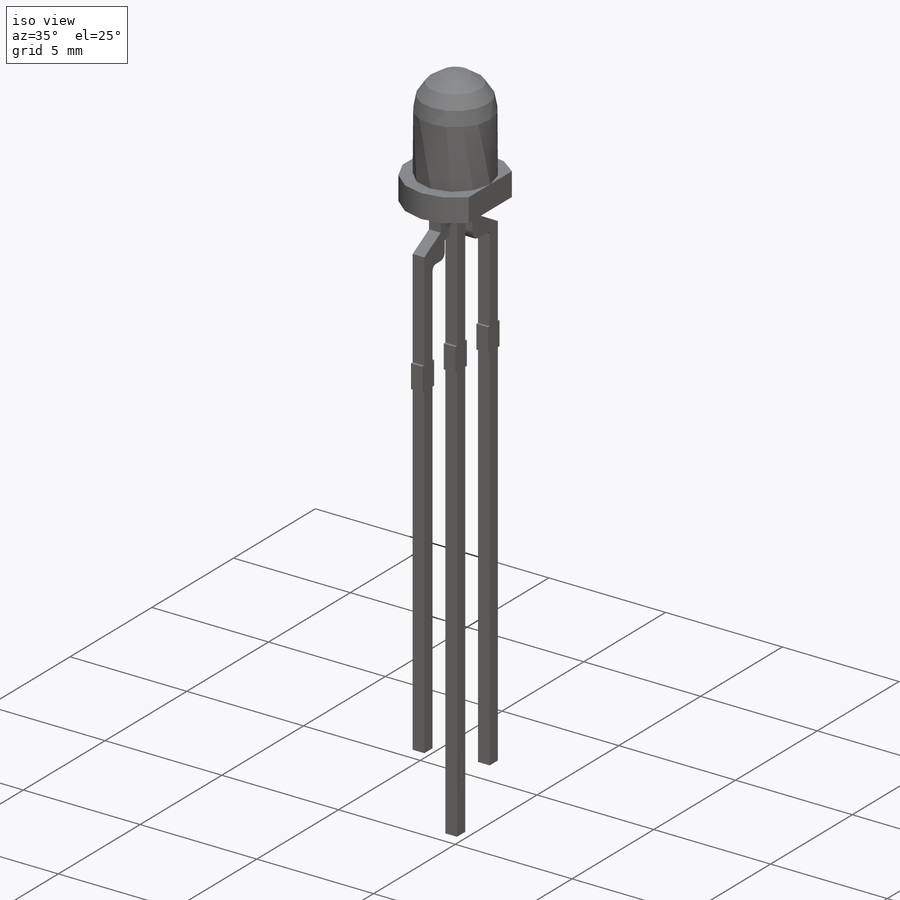
[diagram: iso view]
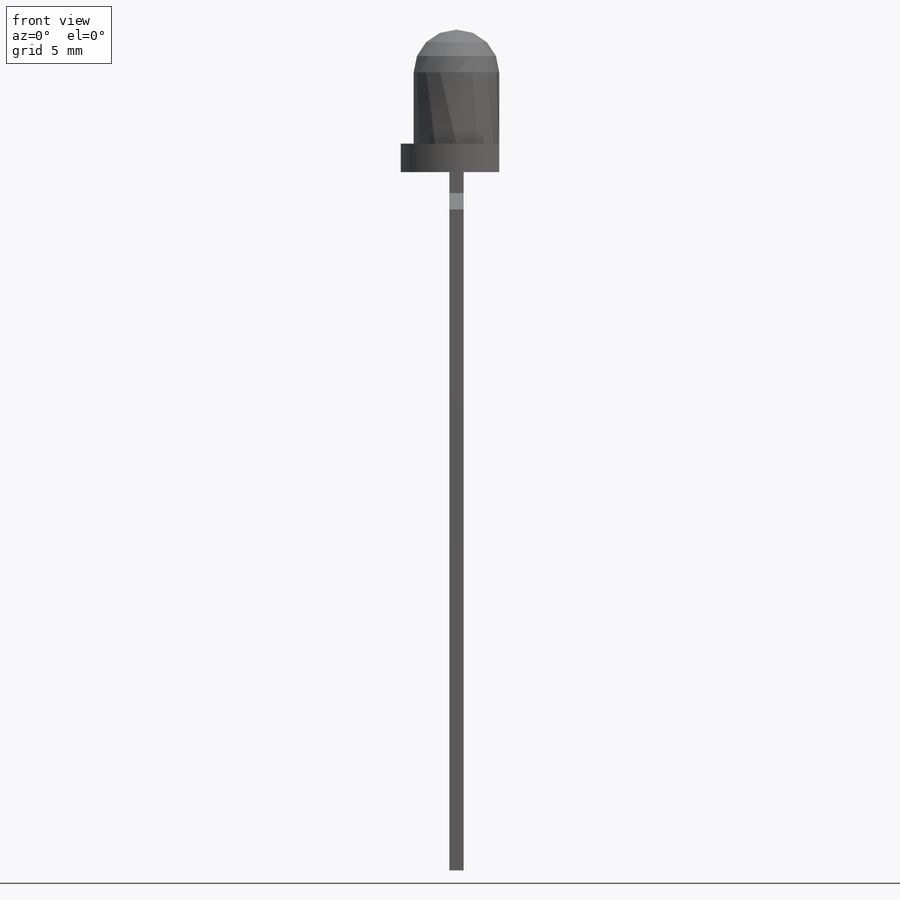
[diagram: front view]
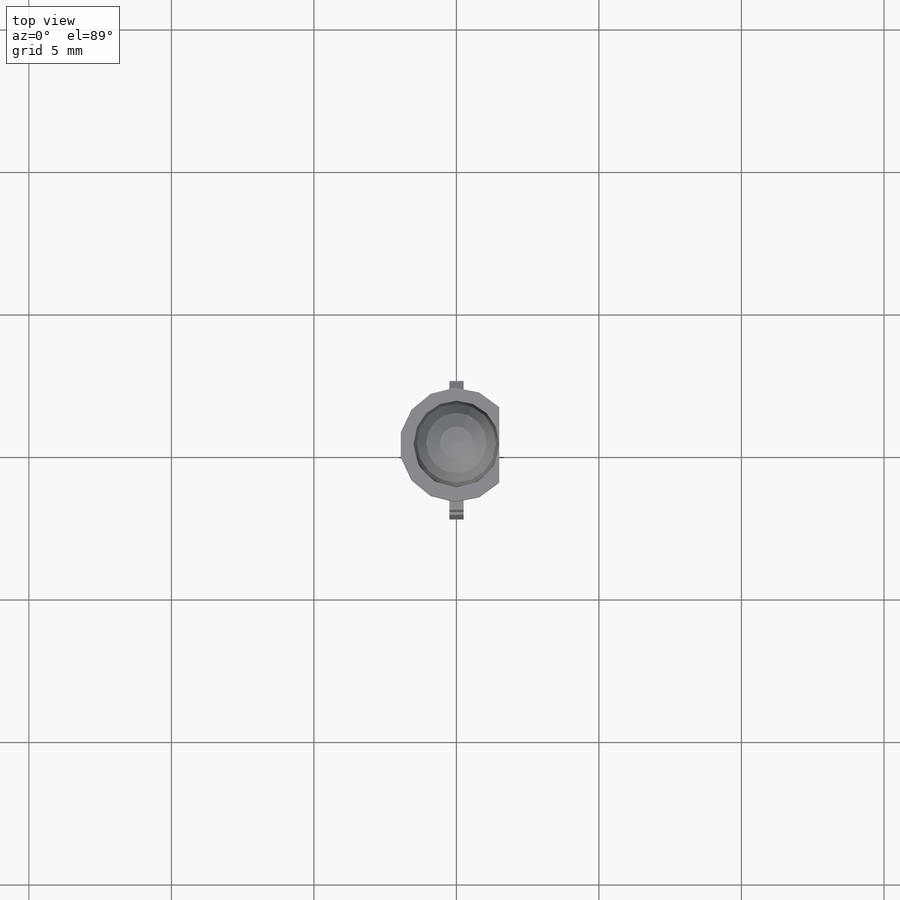
[diagram: top view]
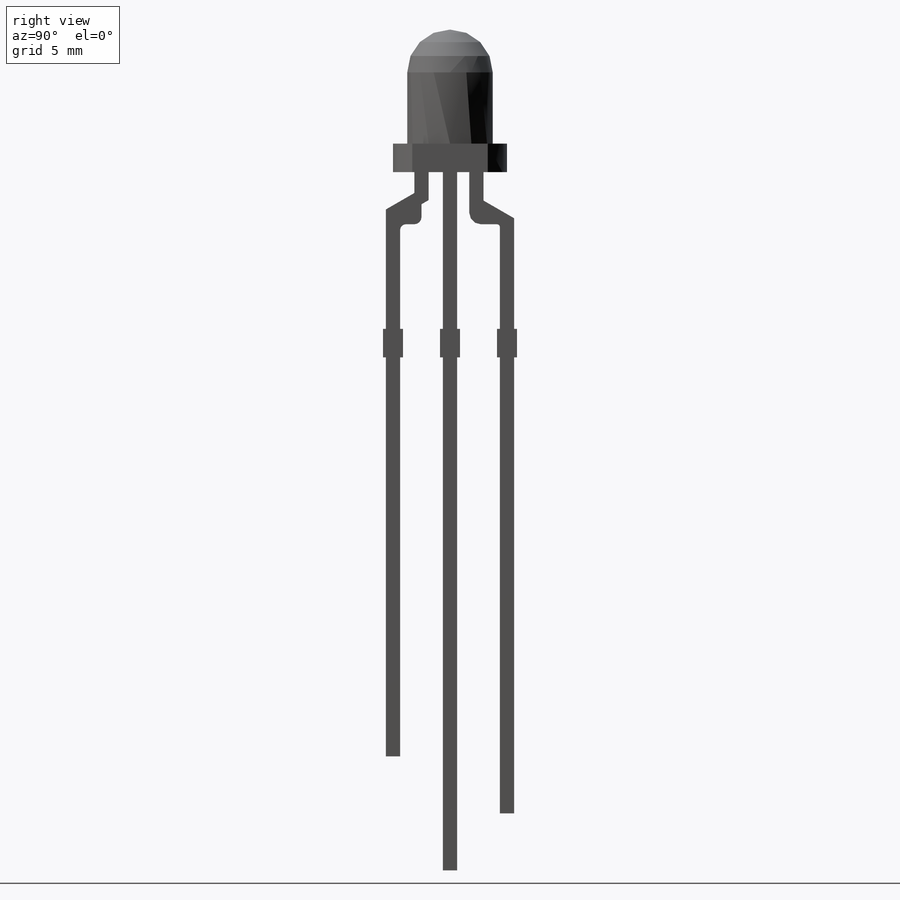
[diagram: right view]
SOLIDWORKS PART (.sldprt)
format: sldprt  version: not decoded by parser v0  size: 662,016 bytes
history: native  units: mm
features: sketch x4, extrude x2, material x1, revolve x1, cut_extrude x1 (+11 scaffold rows collapsed)
feature tree (20):
  scaffold x11  (default folders/planes/origin — collapsed)
  material  "Material <not specified>"
  sketch  "Sketch1"  dims[D1=4.0mm D2=3.0mm]
  extrude  "Extrude1"  Depth=1mm
  sketch  "Sketch2"  dims[c1.D1=3.0mm c1.D12=0.4mm c1.D13=0.1mm c1.D14=~0.69664mm c1.D7=~0.69664mm c2.D12=0.2mm c2.D14=0.2mm c2.D18=0.1mm c2.D19=0.4mm c2.D7=0.25mm c2.D2=5.0mm c2.D3=6.83mm c2.D4=~1.093206mm c3.D4=120.0deg c3.D5=~2.07515mm c4.D5=120.0deg c4.D6=0.5mm c4.D7=0.5mm c4.D8=0.5mm c4.D9=1.0mm c4.D10=1.0mm c4.D11=0.5mm c4.D15=1.0mm c4.D16=0.7mm c4.D17=5.0mm c5.D10=1.0mm c5.D7=0.5mm c5.D11=0.5mm c6.D10=0.27mm c6.D12=2.0mm c6.D13=2.0mm c6.D20=~0.572505mm c6.D21=24.5mm c6.D22=2.0mm c6.D23=4.0mm c6.D6=0.5mm c7.D10=0.5mm c7.D24=~0.733436mm c7.D17=10.5mm]
  revolve  "Revolve1"  Angle=360deg
  extrude  "Extrude2"  [1 undecoded]
  sketch  "Sketch2<3>"  dims[D1=0.5mm]
  sketch  "Sketch3"  dims[D1=5.0mm]
  cut_extrude  "Cut-Extrude1"  Depth=0.01mm
decode coverage: 7 of 8 modeling features carry decoded parameters
note: ~ marks probable driven/reference dimensions
note: 1 parameter value undecoded
note: suppression state not decoded; provenance and decode notes live in map.json
